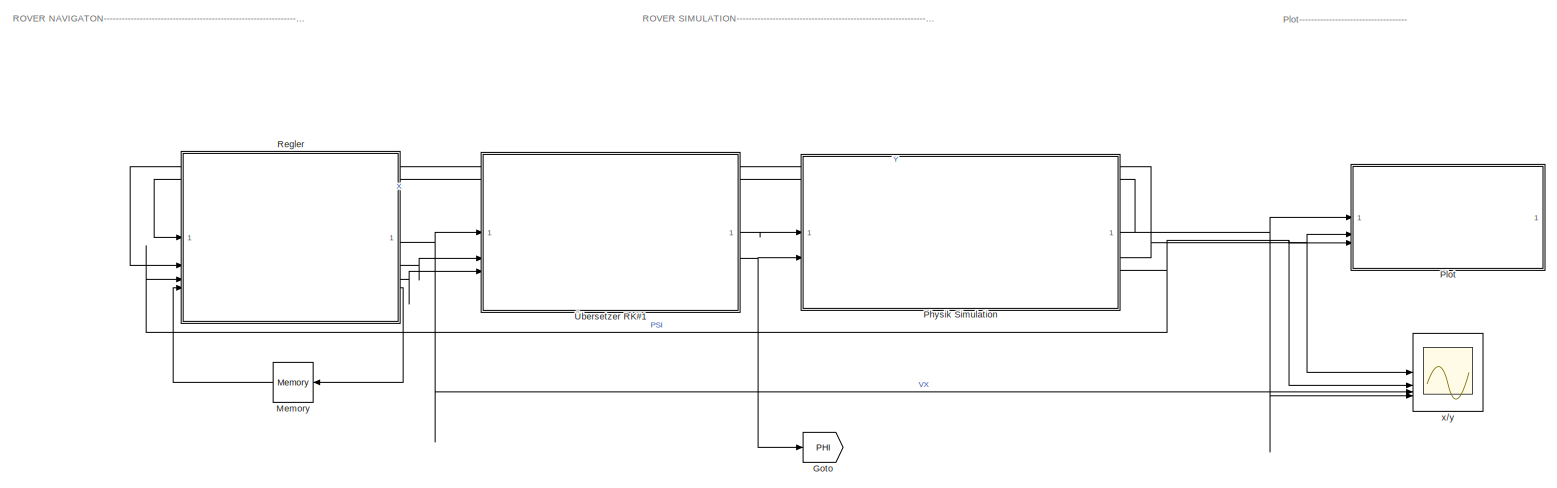
[diagram: root canvas - part 1/1, most of the canvas]
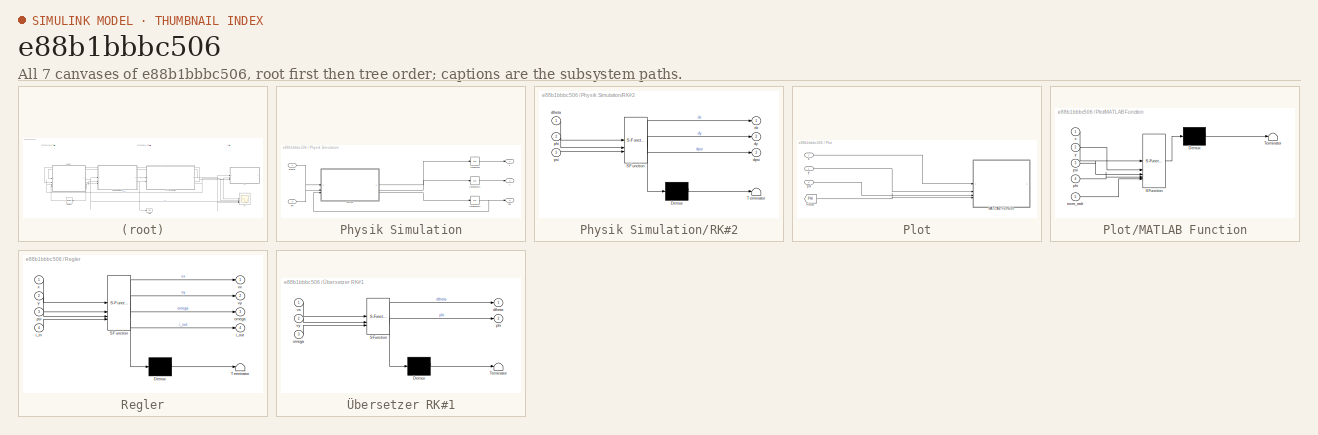
[diagram: thumbnail index - all 7 canvases of the model, root first then tree order]
MODEL slx_e88b1bbbc506
KIND model
CONFIG AbsTol = auto
CONFIG EnableMultiTasking = off
CONFIG FixedStep = auto
CONFIG InitFcn = main
CONFIG MaxStep = 0.1
CONFIG MinStep = auto
CONFIG RelTol = 1e-3
CONFIG SampleTimeConstraint = Unconstrained
CONFIG SolverName = VariableStepAuto
CONFIG StartTime = 0.0
CONFIG StopTime = 30
BLOCK [Goto] Goto
  GotoTag = PHI
  TagVisibility = global
BLOCK [Memory] Memory
  InheritSampleTime = on
  InitialCondition = 1
BLOCK [SubSystem] Physik Simulation
BLOCK [Integrator] Physik Simulation/Integrator
  InitialCondition = sp(1)
BLOCK [Integrator] Physik Simulation/Integrator1
  InitialCondition = sp(2)
BLOCK [Integrator] Physik Simulation/Integrator2
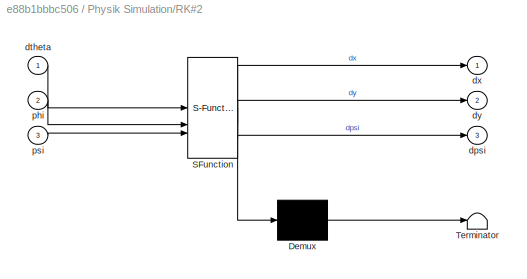
BLOCK [SubSystem] Physik Simulation/RK#2
  ErrorFcn = Stateflow.Translate.translate
  PermitHierarchicalResolution = ExplicitOnly
  SFBlockType = MATLAB Function
  TreatAsAtomicUnit = on
BLOCK [Demux] Physik Simulation/RK#2/ Demux 
  Outputs = 1
BLOCK [S-Function] Physik Simulation/RK#2/ SFunction 
  EnableBusSupport = on
  FunctionName = sf_sfun
  Parameters = X_sp,Y_sp,rover_radr,roverb
  PortCounts = [3 4]
  SFcnIsStateOwnerBlock = off
  SFunctionDeploymentMode = off
  Tag = Stateflow S-Function 4
BLOCK [Terminator] Physik Simulation/RK#2/ Terminator 
BLOCK [Outport] Physik Simulation/RK#2/dpsi
  Port = 3
BLOCK [Inport] Physik Simulation/RK#2/dtheta
BLOCK [Outport] Physik Simulation/RK#2/dx
BLOCK [Outport] Physik Simulation/RK#2/dy
  Port = 2
BLOCK [Inport] Physik Simulation/RK#2/phi
  Port = 2
BLOCK [Inport] Physik Simulation/RK#2/psi
  Port = 3
BLOCK [Inport] Physik Simulation/dtheta
BLOCK [Inport] Physik Simulation/phi
  Port = 2
BLOCK [Outport] Physik Simulation/psi
  NameLocation = right
  Port = 3
BLOCK [Outport] Physik Simulation/x
BLOCK [Outport] Physik Simulation/y
  Port = 2
BLOCK [SubSystem] Plot
BLOCK [From] Plot/From
  GotoTag = PHI
  TagVisibility = global
BLOCK [SubSystem] Plot/MATLAB Function
  ErrorFcn = Stateflow.Translate.translate
  PermitHierarchicalResolution = ExplicitOnly
  SFBlockType = MATLAB Function
  TreatAsAtomicUnit = on
BLOCK [Demux] Plot/MATLAB Function/ Demux 
  Outputs = 1
BLOCK [S-Function] Plot/MATLAB Function/ SFunction 
  EnableBusSupport = on
  FunctionName = sf_sfun
  Parameters = rad_b,rad_l,roverb,roverh,roverl
  PortCounts = [5 1]
  SFcnIsStateOwnerBlock = off
  SFunctionDeploymentMode = off
  Tag = Stateflow S-Function 6
BLOCK [Terminator] Plot/MATLAB Function/ Terminator 
BLOCK [Inport] Plot/MATLAB Function/phi
  Port = 4
BLOCK [Inport] Plot/MATLAB Function/psi
  Port = 3
BLOCK [Inport] Plot/MATLAB Function/rover_radr
  Port = 5
BLOCK [Inport] Plot/MATLAB Function/x
BLOCK [Inport] Plot/MATLAB Function/y
  Port = 2
BLOCK [Inport] Plot/psi
  Port = 3
BLOCK [Inport] Plot/x
BLOCK [Inport] Plot/y
  Port = 2
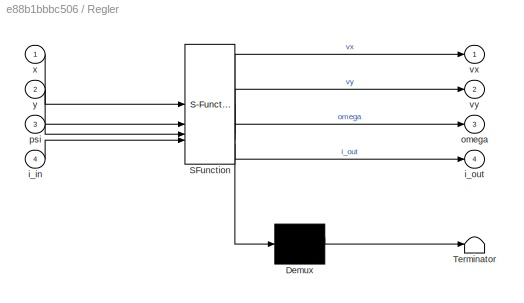
BLOCK [SubSystem] Regler
  ErrorFcn = Stateflow.Translate.translate
  PermitHierarchicalResolution = ExplicitOnly
  SFBlockType = MATLAB Function
  TreatAsAtomicUnit = on
BLOCK [Demux] Regler/ Demux 
  Outputs = 1
BLOCK [S-Function] Regler/ SFunction 
  EnableBusSupport = on
  FunctionName = sf_sfun
  Parameters = x_pfad,y_pfad
  PortCounts = [4 5]
  SFcnIsStateOwnerBlock = off
  SFunctionDeploymentMode = off
  Tag = Stateflow S-Function 1
BLOCK [Terminator] Regler/ Terminator 
BLOCK [Inport] Regler/i_in
  Port = 4
BLOCK [Outport] Regler/i_out
  Port = 4
BLOCK [Outport] Regler/omega
  Port = 3
BLOCK [Inport] Regler/psi
  Port = 3
BLOCK [Outport] Regler/vx
BLOCK [Outport] Regler/vy
  Port = 2
BLOCK [Inport] Regler/x
BLOCK [Inport] Regler/y
  Port = 2
BLOCK [Scope] x//y
  Floating = off
  NumInputPorts = 4
  ScopeSpecificationString = Simulink.scopes.TimeScopeBlockCfg('CurrentConfiguration', extmgr.ConfigurationSet(extmgr.Configuration('Core','General UI',true),extmgr.Configuration('Core','Source UI',true),extmgr.Configuration('Sources','WiredSimulink',true),extmgr.Configuration('Visuals','Time Domain',true,'SerializedDisplays',{struct('MinYLimReal','-0.62497','MaxYLimReal','5.62477','YLabelReal','','MinYLimMag','0.00000','MaxY...<+3955ch>
BLOCK [SubSystem] Übersetzer RK#1
  ErrorFcn = Stateflow.Translate.translate
  PermitHierarchicalResolution = ExplicitOnly
  SFBlockType = MATLAB Function
  TreatAsAtomicUnit = on
BLOCK [Demux] Übersetzer RK#1/ Demux 
  Outputs = 1
BLOCK [S-Function] Übersetzer RK#1/ SFunction 
  EnableBusSupport = on
  FunctionName = sf_sfun
  Parameters = rover_radr,roverb,roverl
  PortCounts = [3 3]
  SFcnIsStateOwnerBlock = off
  SFunctionDeploymentMode = off
  Tag = Stateflow S-Function 2
BLOCK [Terminator] Übersetzer RK#1/ Terminator 
BLOCK [Outport] Übersetzer RK#1/dtheta
BLOCK [Inport] Übersetzer RK#1/omega
  Port = 3
BLOCK [Outport] Übersetzer RK#1/phi
  Port = 2
BLOCK [Inport] Übersetzer RK#1/vx
BLOCK [Inport] Übersetzer RK#1/vy
  Port = 2
ANNOTATION (root): ROVER NAVIGATON-----------------------------------------------------------------------------------------------------------------------------------------------
ANNOTATION (root): ROVER SIMULATION----------------------------------------------------------------------------------------------------------
ANNOTATION (root): Plot------------------------------------
LINE Memory:1 -> Regler:4
LINE Physik Simulation/Integrator1:1 -> Physik Simulation/y:1
NET Physik Simulation/Integrator2:1 -> Physik Simulation/RK#2:3, Physik Simulation/psi:1
LINE Physik Simulation/Integrator:1 -> Physik Simulation/x:1
LINE Physik Simulation/RK#2:1 -> Physik Simulation/Integrator:1
LINE Physik Simulation/RK#2:2 -> Physik Simulation/Integrator1:1
LINE Physik Simulation/RK#2:3 -> Physik Simulation/Integrator2:1
LINE Physik Simulation/dtheta:1 -> Physik Simulation/RK#2:1
LINE Physik Simulation/phi:1 -> Physik Simulation/RK#2:2
NET Physik Simulation:1 -> Plot:1, Regler:1, x//y:4
NET Physik Simulation:2 -> Plot:2, Regler:2, x//y:1
NET Physik Simulation:3 -> Plot:3, Regler:3, x//y:2
LINE Plot/From:1 -> Plot/MATLAB Function:4
LINE Plot/psi:1 -> Plot/MATLAB Function:3
LINE Plot/x:1 -> Plot/MATLAB Function:1
LINE Plot/y:1 -> Plot/MATLAB Function:2
NET Regler:1 -> x//y:3, Übersetzer RK#1:1
LINE Regler:2 -> Übersetzer RK#1:2
LINE Regler:3 -> Übersetzer RK#1:3
LINE Regler:4 -> Memory:1
LINE Übersetzer RK#1:1 -> Physik Simulation:1
NET Übersetzer RK#1:2 -> Goto:1, Physik Simulation:2
note: NET lines group one-source signal fan-out (src -> all destinations, sorted); 1:1 wires keep LINE
CHART Regler states=1 transitions=1
  STATE_LABEL 'eML_blk_kernel()'
  STATE_LABEL 'SCRIPT:\nfunction [vx, vy, omega, i_out] = P_Regler(x, y, psi, i_in, x_pfad, y_pfad)\n%#codegen\n\n% Reglerparameter\nKp_pos    = 5.0;\nKp_phi    = 0.0;    % Kp_phi = 0 -> Drehung während Fahrt nicht berücksichtigt\ntol_dist  = 0.1;\nmax_omega = 1.0;\n\n% Index-Initialisierung und stellt sicher dass der Index im gültigen\n% Bereich liegt\ni = max(1, min(i_in, length(x_pfad)));\n\n% Sollpunkt\nx_soll = x_pfad(i);...<+605ch>'
CHART Übersetzer RK#1 states=1 transitions=1
  STATE_LABEL 'eML_blk_kernel()'
  STATE_LABEL 'SCRIPT:\nfunction [dtheta, phi] = uebersetzer(vx,vy, omega, roverb, roverl, rover_radr)\n%%%%%%(RK#1)%%%%%%%%%%\n% Vorberechnung\nb2 = roverb/2;\nl2 = roverl/2;\n\n% Lenkwinkel phi_i\nphi = zeros(4,1); % erstellt Vektor 4x1 mit 0er\nphi(1) = atan2(vy + omega * l2, vx + omega * b2);\nphi(2) = atan2(vy + omega * l2, vx - omega * b2);\nphi(3) = atan2(vy - omega * l2, vx - omega * b2);\nphi(4) = atan2(vy - omega ...<+393ch>'
CHART Physik Simulation/RK#2 states=1 transitions=1
  STATE_LABEL 'eML_blk_kernel()'
  STATE_LABEL 'SCRIPT:\nfunction [dx, dy, dpsi]  = fcn(dtheta, phi, psi, rover_radr, roverb, X_sp, Y_sp)\n\n%Initialisierung als Skalar\ndx = X_sp;\ndy = Y_sp;\ndpsi = 0;\n\n%Rotationsmatrix\nrmatrix=[cos(psi) sin(psi) 0; -sin(psi) cos(psi) 0; 0 0 1 ];\n\n%berechnet die translatorische und rotatorische Geschwindigkeit des Roboters im lokalen Koordinatensystem\nm2 = [rover_radr/4 * (dtheta(1)*cos(phi(1)) + dtheta(2)*cos(phi(...<+436ch>'
CHART Plot/MATLAB Function states=1 transitions=1
  STATE_LABEL 'eML_blk_kernel()'
  STATE_LABEL "SCRIPT:\nfunction update_visu(x, y, psi, phi, roverl, roverb, roverh, rad_l, rad_b, rover_radr)\n%#codegen\ncoder.extrinsic('update_visu');\n\nx = double(x);\ny = double(y);\npsi = double(psi);\nphi = double(phi);\n\nupdate_visu(x, y, psi, phi, roverl, roverb, rad_l, rad_b, rover_radr, roverh);\n"
CHART  states=0 transitions=0
CHART  states=0 transitions=0
CHART  states=0 transitions=0
CHART  states=0 transitions=0
